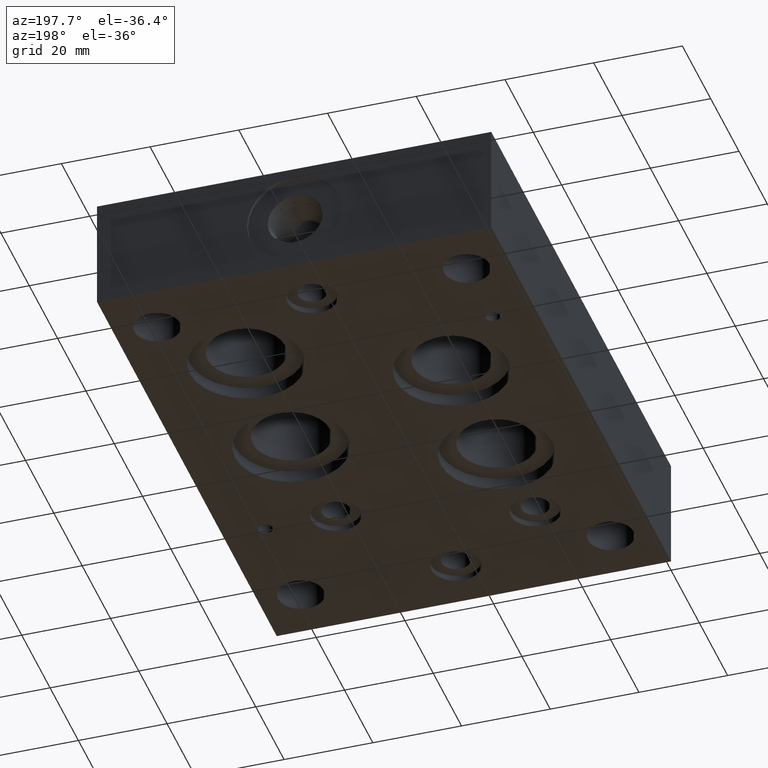
[diagram: clean part render]
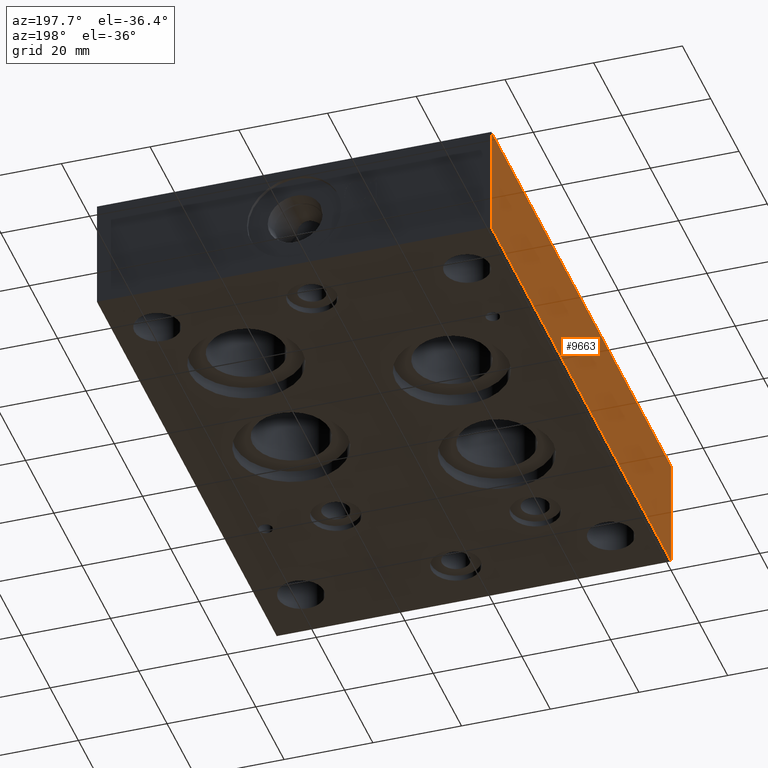
[diagram: same view with one face highlighted and labeled with its STEP entity id]
A machine part, auxiliary view. The second image highlights one B-rep face of the part: STEP entity #9663.
In plain terms, the highlighted planar face has unit normal (-1, 0, 0).
Its self-contained STEP definition (entity closure, byte-faithful):
#1135=FACE_OUTER_BOUND('',#1655,.T.);
#1655=EDGE_LOOP('',(#8331,#8332,#8333,#8334));
#2632=LINE('',#16519,#3571);
#2633=LINE('',#16521,#3572);
#2634=LINE('',#16523,#3573);
#2635=LINE('',#16524,#3574);
#3571=VECTOR('',#12274,10.);
#3572=VECTOR('',#12275,10.);
#3573=VECTOR('',#12276,10.);
#3574=VECTOR('',#12277,10.);
#4489=VERTEX_POINT('',#16517);
#4490=VERTEX_POINT('',#16518);
#4491=VERTEX_POINT('',#16520);
#4492=VERTEX_POINT('',#16522);
#5823=EDGE_CURVE('',#4489,#4490,#2632,.T.);
#5824=EDGE_CURVE('',#4490,#4491,#2633,.T.);
#5825=EDGE_CURVE('',#4492,#4491,#2634,.T.);
#5826=EDGE_CURVE('',#4489,#4492,#2635,.T.);
#8331=ORIENTED_EDGE('',*,*,#5823,.T.);
#8332=ORIENTED_EDGE('',*,*,#5824,.T.);
#8333=ORIENTED_EDGE('',*,*,#5825,.F.);
#8334=ORIENTED_EDGE('',*,*,#5826,.F.);
#8811=PLANE('',#10233);
#9663=ADVANCED_FACE('',(#1135),#8811,.T.);
#10233=AXIS2_PLACEMENT_3D('',#16516,#12272,#12273);
#12272=DIRECTION('center_axis',(-1.,0.,0.));
#12273=DIRECTION('ref_axis',(0.,-1.,0.));
#12274=DIRECTION('',(0.,-1.,0.));
#12275=DIRECTION('',(0.,0.,1.));
#12276=DIRECTION('',(0.,-1.,0.));
#12277=DIRECTION('',(0.,0.,1.));
#16516=CARTESIAN_POINT('Origin',(0.,127.,0.));
#16517=CARTESIAN_POINT('',(0.,127.,0.));
#16518=CARTESIAN_POINT('',(0.,0.,0.));
#16519=CARTESIAN_POINT('',(0.,127.,0.));
#16520=CARTESIAN_POINT('',(0.,0.,25.4));
#16521=CARTESIAN_POINT('',(0.,0.,0.));
#16522=CARTESIAN_POINT('',(0.,127.,25.4));
#16523=CARTESIAN_POINT('',(0.,127.,25.4));
#16524=CARTESIAN_POINT('',(0.,127.,0.));